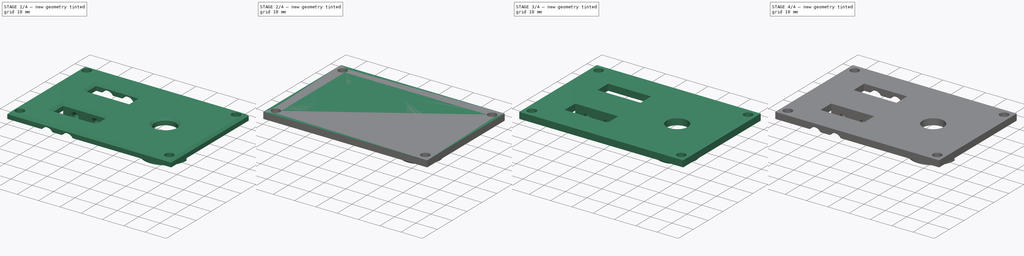
[diagram: build sequence overview — one tinted view per stage of 4, left to right]
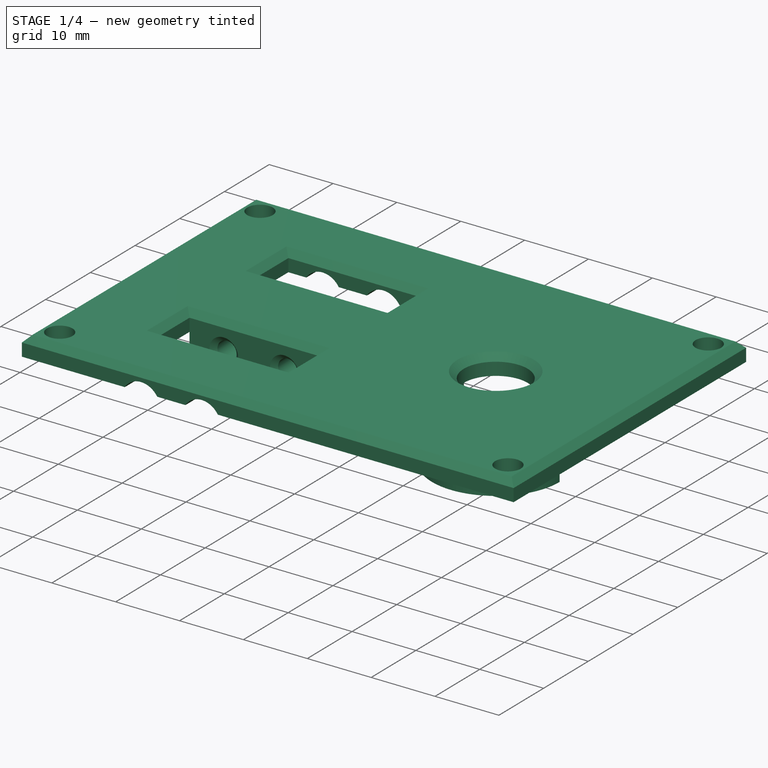
[diagram: stage 1 of 4 — iso view after this stage's code; geometry added in this stage tinted green]
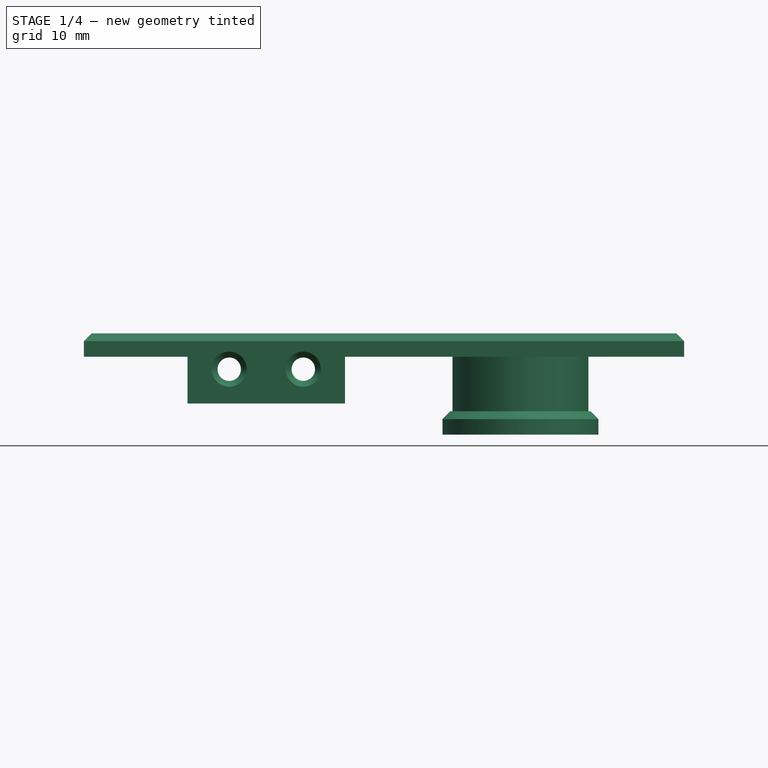
[diagram: stage 1 of 4 — front view after this stage's code; geometry added in this stage tinted green]
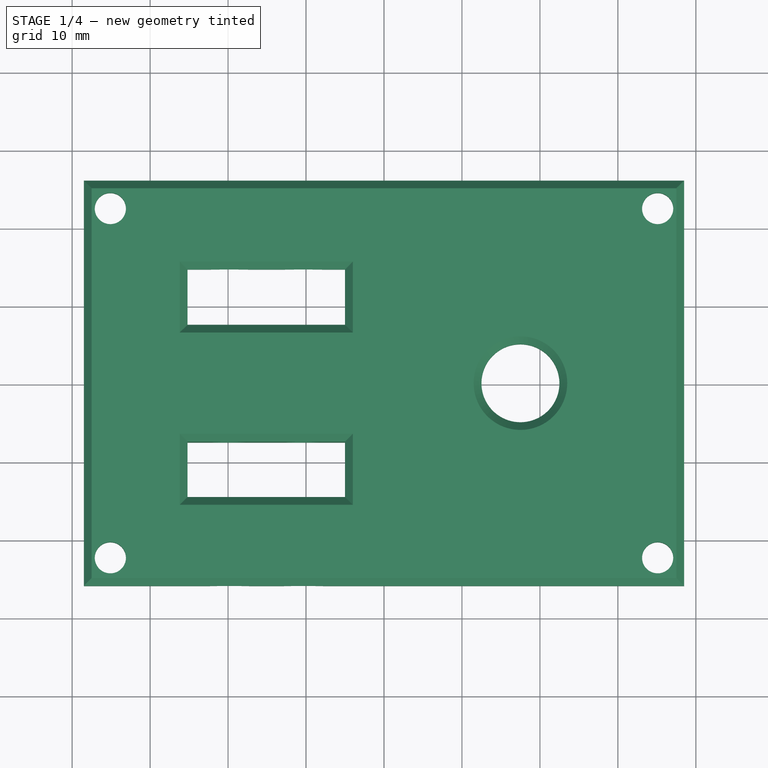
[diagram: stage 1 of 4 — top view after this stage's code; geometry added in this stage tinted green]
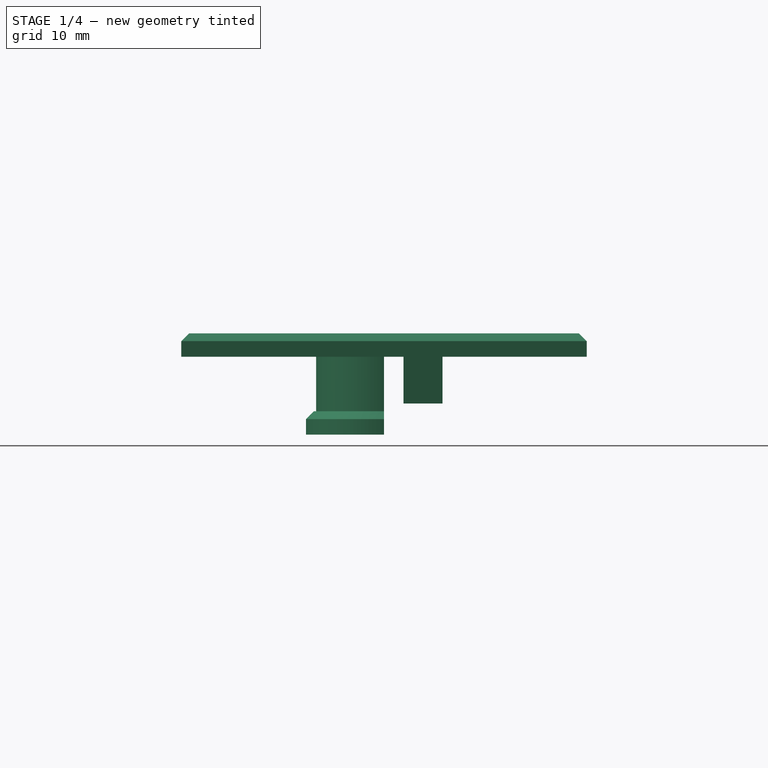
[diagram: stage 1 of 4 — right view after this stage's code; geometry added in this stage tinted green]
FCSTD DOCUMENT  (FreeCAD 0.17R7796 (Git))
Label: taz_heat_bed_external_extention_harness_plate
License: CreativeCommons Attribution-ShareAlike
LicenseURL: http://creativecommons.org/licenses/by-sa/4.0/
objects: Sketcher::SketchObject×8, PartDesign::Chamfer×6, PartDesign::Pad×4, PartDesign::Pocket×4, PartDesign::Body×1, Part::Feature×1
note: 32 computed .brp shape members not serialized (recipe doc carries the construction recipe); baked Part::Feature solids carry a one-line shape summary decoded from their .brp

FEATURE [PartDesign::Body] Body
  Model = -> [Sketch,Pad,Sketch001,Pocket,Sketch002,Pad001,Sketch003,Pocket001,Sketch004,Pocket002,Sketch005,Pocket003,Sketch006,Pad002,Sketch007,Pad003]
  Origin = -> BodyOrigin
  Tip = -> Pad003
FEATURE [Part::Feature] Pad003001  label="Pad004"
  shape: bbox 77 x 52 x 13 mm, 43 faces (baked)
FEATURE [PartDesign::Chamfer] Chamfer
  Base = -> Pad003001 [Edge114]
  Size = 1
FEATURE [PartDesign::Chamfer] Chamfer001
  Base = -> Chamfer [Edge49]
  Size = 1
FEATURE [PartDesign::Chamfer] Chamfer002
  Base = -> Chamfer001 [Edge56,Edge55,Edge57,Edge58,Edge70,Edge67,Edge68,Edge69,Edge65,Edge63,Edge62,Edge64,Edge19]
  Size = 1
FEATURE [PartDesign::Chamfer] Chamfer003
  Base = -> Chamfer002 [Edge149,Edge148,Edge152,Edge151]
  Size = 0.75
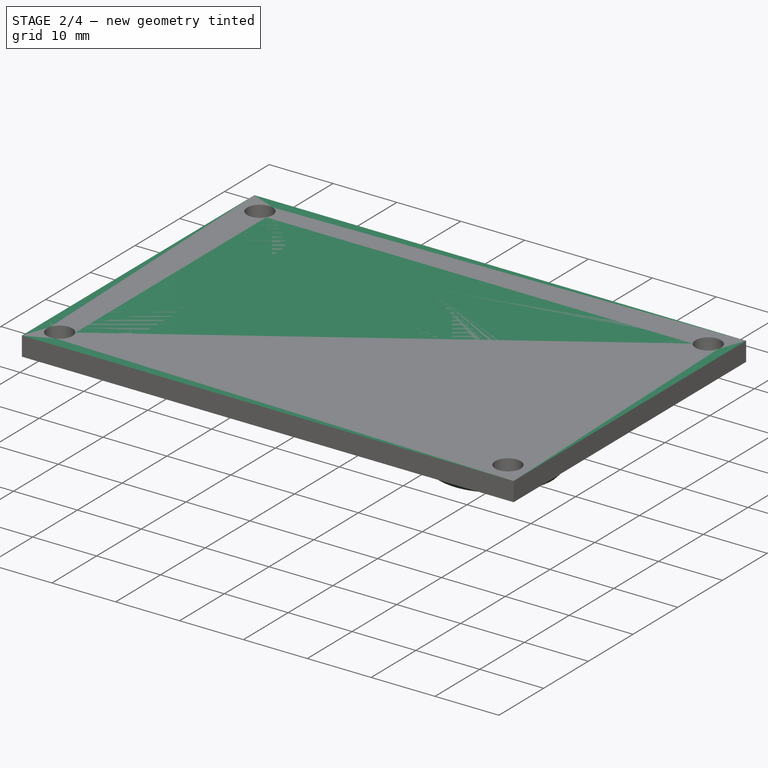
[diagram: stage 2 of 4 — iso view after this stage's code; geometry added in this stage tinted green]
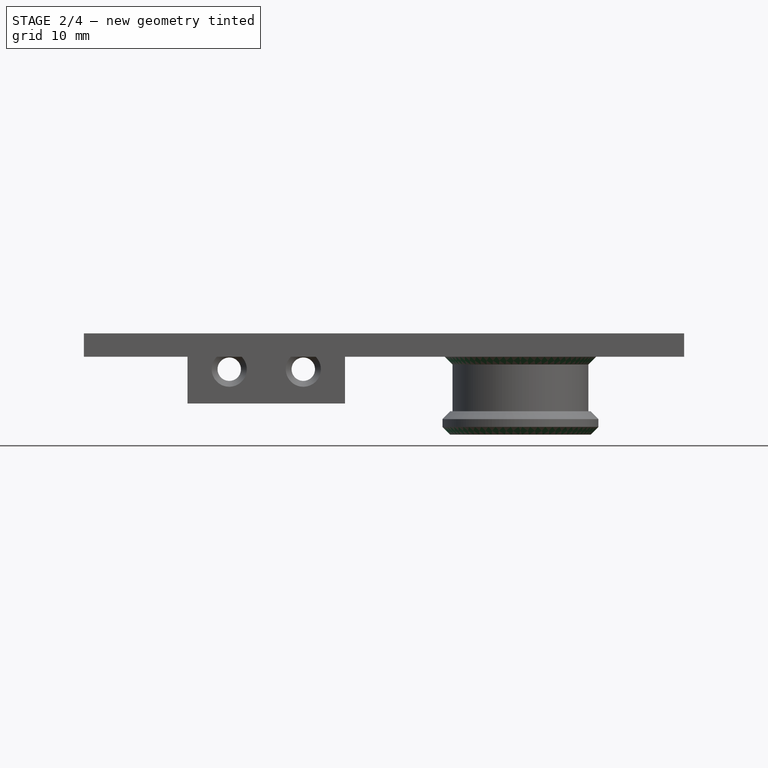
[diagram: stage 2 of 4 — front view after this stage's code; geometry added in this stage tinted green]
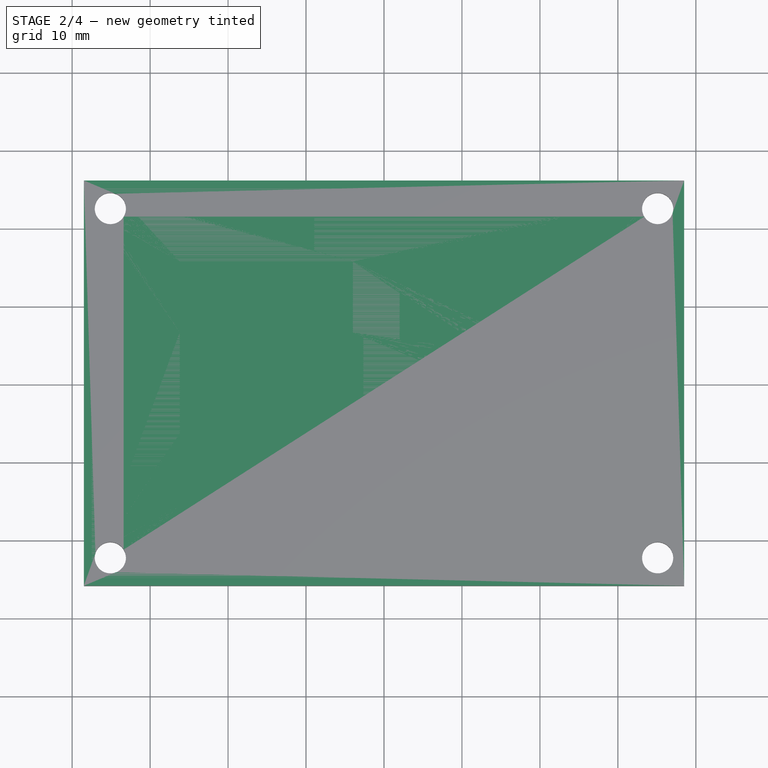
[diagram: stage 2 of 4 — top view after this stage's code; geometry added in this stage tinted green]
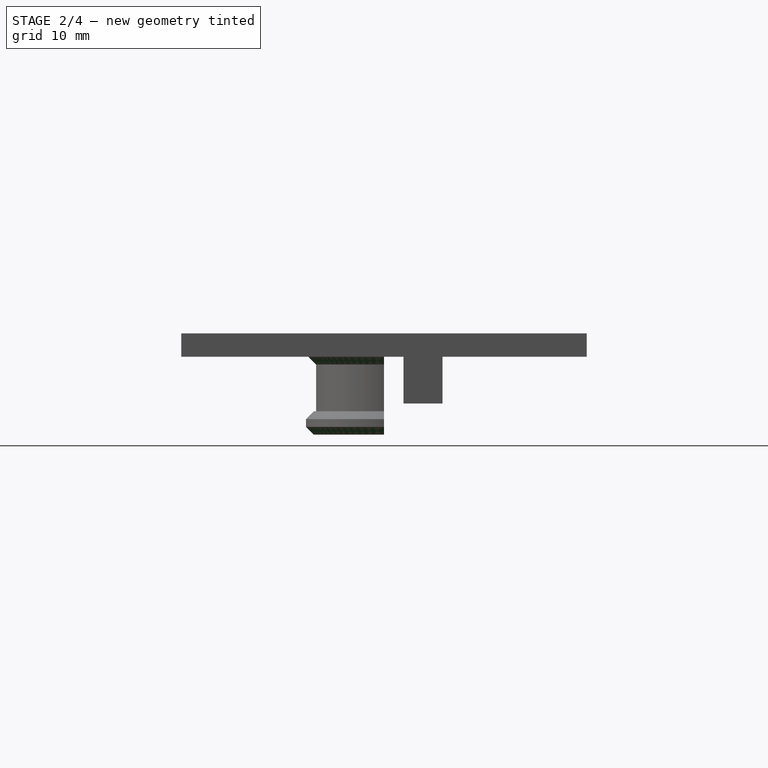
[diagram: stage 2 of 4 — right view after this stage's code; geometry added in this stage tinted green]
FEATURE [Sketcher::SketchObject] Sketch
  MapMode = 5
  Support = -> [XY_Plane]
  sketch-geometry (12):
    g0: LineSegment [constr] StartX=-35.1 StartY=22.4 StartZ=0 EndX=35.1 EndY=22.4 EndZ=0
    g1: LineSegment [constr] StartX=35.1 StartY=22.4 StartZ=0 EndX=35.1 EndY=-22.4 EndZ=0
    g2: LineSegment [constr] StartX=35.1 StartY=-22.4 StartZ=0 EndX=-35.1 EndY=-22.4 EndZ=0
    g3: LineSegment [constr] StartX=-35.1 StartY=-22.4 StartZ=0 EndX=-35.1 EndY=22.4 EndZ=0
    g4: LineSegment StartX=-38.5 StartY=26 StartZ=0 EndX=38.5 EndY=26 EndZ=0
    g5: LineSegment StartX=38.5 StartY=26 StartZ=0 EndX=38.5 EndY=-26 EndZ=0
    g6: LineSegment StartX=38.5 StartY=-26 StartZ=0 EndX=-38.5 EndY=-26 EndZ=0
    g7: LineSegment StartX=-38.5 StartY=-26 StartZ=0 EndX=-38.5 EndY=26 EndZ=0
    g8: Circle CenterX=-35.1 CenterY=22.4 CenterZ=0 NormalX=0 NormalY=0 NormalZ=1 Radius=2
    g9: Circle CenterX=35.1 CenterY=22.4 CenterZ=0 NormalX=0 NormalY=0 NormalZ=1 Radius=2
    g10: Circle CenterX=35.1 CenterY=-22.4 CenterZ=0 NormalX=0 NormalY=0 NormalZ=1 Radius=2
    g11: Circle CenterX=-35.1 CenterY=-22.4 CenterZ=0 NormalX=0 NormalY=0 NormalZ=1 Radius=2
  constraints (32):
    c: Coincident(g0,g1)
    c: Coincident(g1,g2)
    c: Coincident(g2,g3)
    c: Coincident(g3,g0)
    c: Horizontal(g0)
    c: Horizontal(g2)
    c: Vertical(g1)
    c: Vertical(g3)
    c: DistanceY(g3,g3) = 44.8
    c: DistanceX(g0,g0) = 70.2
    c: Coincident(g4,g5)
    c: Coincident(g5,g6)
    c: Coincident(g6,g7)
    c: Coincident(g7,g4)
    c: Horizontal(g4)
    c: Horizontal(g6)
    c: Vertical(g5)
    c: Vertical(g7)
    c: DistanceY(g7,g7) = 52
    c: DistanceX(g4,g4) = 77
    c: DistanceX(g2,g-1) = 35.1
    c: DistanceY(g2,g-1) = 22.4
    c: DistanceY(g0,g4) = 3.6
    c: DistanceX(g4,g0) = 3.4
    c: Coincident(g8,g0)
    c: Coincident(g9,g0)
    c: Coincident(g10,g1)
    c: Coincident(g11,g2)
    c: Radius(g11) = 2
    c: Equal(g11,g8)
    c: Equal(g11,g9)
    c: Equal(g11,g10)
FEATURE [PartDesign::Pad] Pad
  Length = 3
  Length2 = 100
  Profile = -> Sketch
  Type = 0
FEATURE [PartDesign::Chamfer] Chamfer004
  Base = -> Chamfer003 [Edge60]
  Size = 1
FEATURE [PartDesign::Chamfer] Chamfer005
  Base = -> Chamfer004 [Edge122]
  Size = 1
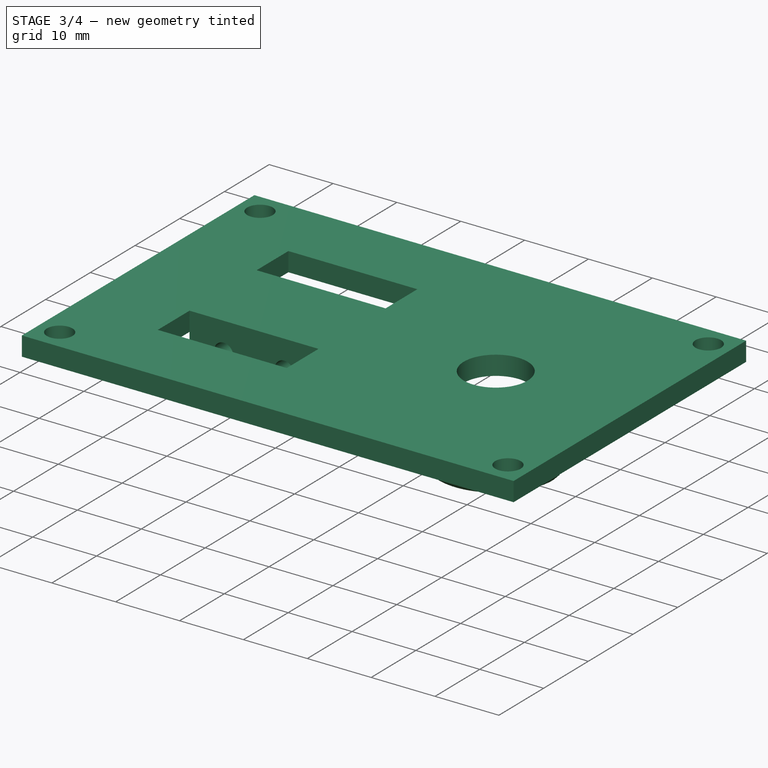
[diagram: stage 3 of 4 — iso view after this stage's code; geometry added in this stage tinted green]
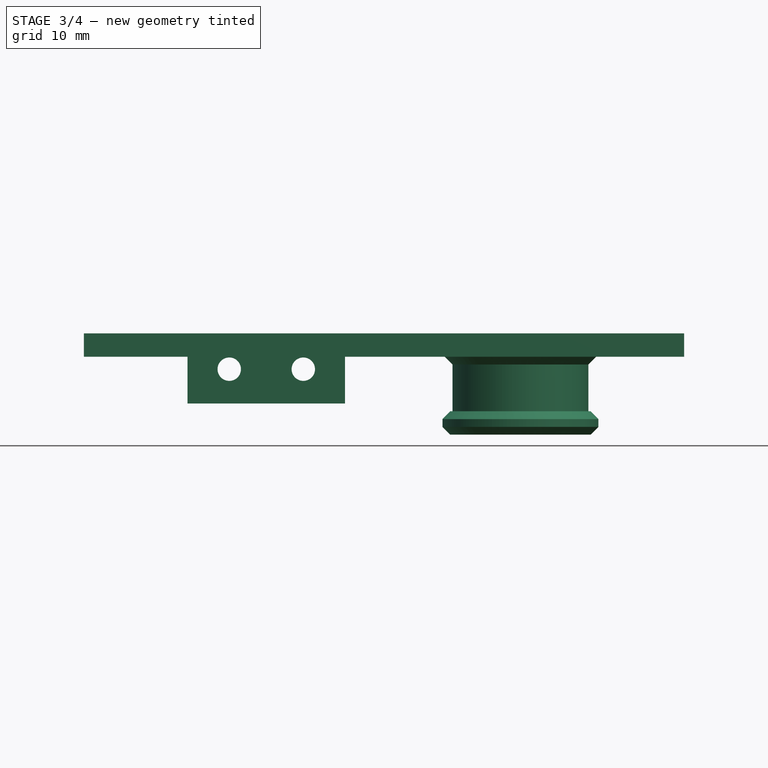
[diagram: stage 3 of 4 — front view after this stage's code; geometry added in this stage tinted green]
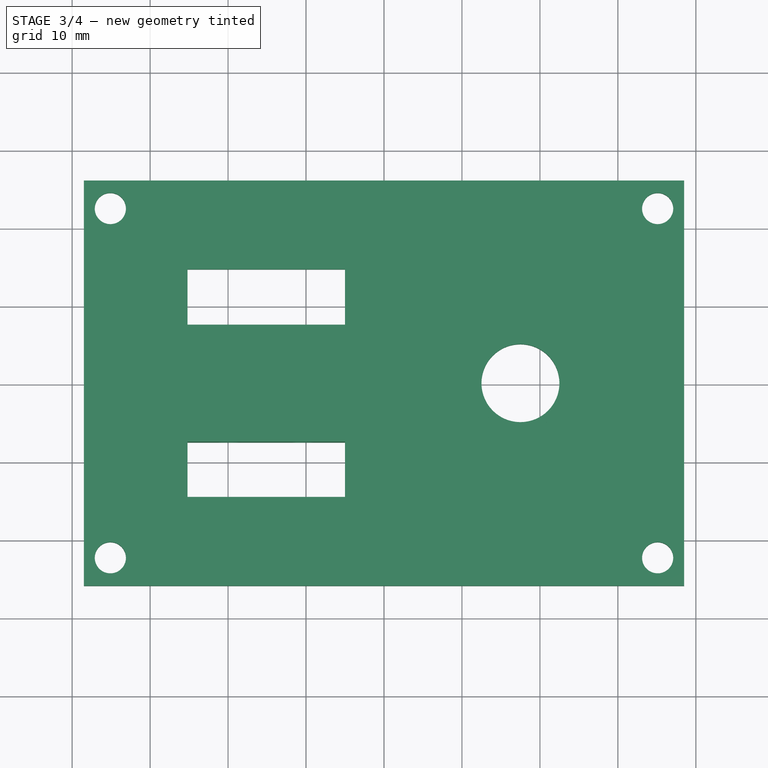
[diagram: stage 3 of 4 — top view after this stage's code; geometry added in this stage tinted green]
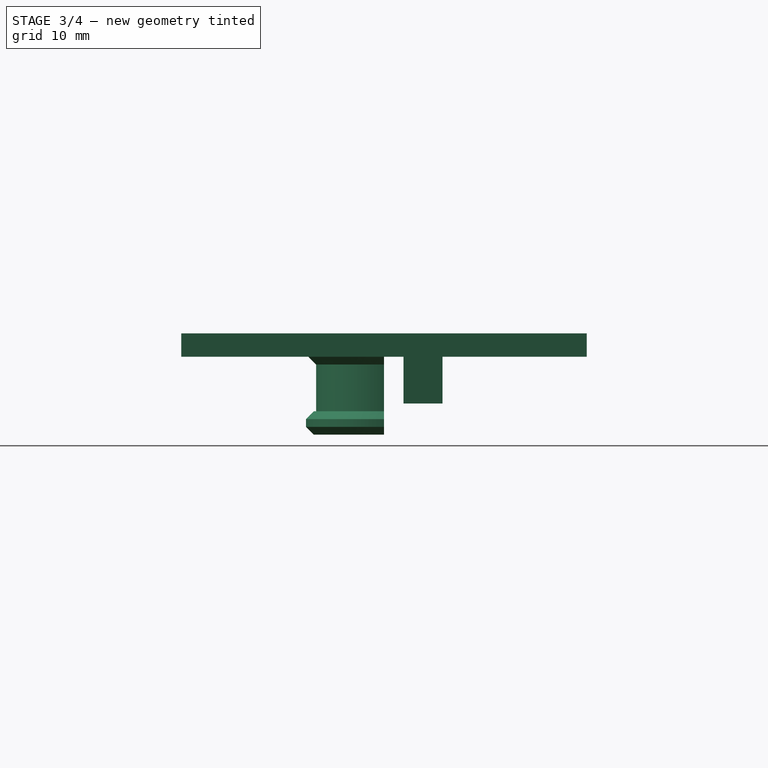
[diagram: stage 3 of 4 — right view after this stage's code; geometry added in this stage tinted green]
FEATURE [Sketcher::SketchObject] Sketch001
  MapMode = 5
  Placement = pos=(0,0,3) rot=(0,0,1;0rad)
  Support = -> [Pad]
  sketch-geometry (9):
    g0: LineSegment StartX=-25.2 StartY=14.6 StartZ=0 EndX=-5 EndY=14.6 EndZ=0
    g1: LineSegment StartX=-5 StartY=14.6 StartZ=0 EndX=-5 EndY=7.5 EndZ=0
    g2: LineSegment StartX=-5 StartY=7.5 StartZ=0 EndX=-25.2 EndY=7.5 EndZ=0
    g3: LineSegment StartX=-25.2 StartY=7.5 StartZ=0 EndX=-25.2 EndY=14.6 EndZ=0
    g4: LineSegment StartX=-25.2 StartY=-7.5 StartZ=0 EndX=-5 EndY=-7.5 EndZ=0
    g5: LineSegment StartX=-5 StartY=-7.5 StartZ=0 EndX=-5 EndY=-14.6 EndZ=0
    g6: LineSegment StartX=-5 StartY=-14.6 StartZ=0 EndX=-25.2 EndY=-14.6 EndZ=0
    g7: LineSegment StartX=-25.2 StartY=-14.6 StartZ=0 EndX=-25.2 EndY=-7.5 EndZ=0
    g8: Circle CenterX=17.5 CenterY=0 CenterZ=0 NormalX=0 NormalY=0 NormalZ=1 Radius=5
  constraints (27):
    c: Coincident(g0,g1)
    c: Coincident(g1,g2)
    c: Coincident(g2,g3)
    c: Coincident(g3,g0)
    c: Horizontal(g0)
    c: Horizontal(g2)
    c: Vertical(g1)
    c: Vertical(g3)
    c: Coincident(g4,g5)
    c: Coincident(g5,g6)
    c: Coincident(g6,g7)
    c: Coincident(g7,g4)
    c: Horizontal(g4)
    c: Horizontal(g6)
    c: Vertical(g5)
    c: Vertical(g7)
    c: PointOnObject(g8,g-1)
    c: Equal(g4,g2)
    c: Equal(g1,g5)
    c: DistanceY(g-1,g1) = 7.5
    c: DistanceY(g4,g-1) = 7.5
    c: DistanceX(g1,g4) = 0
    c: DistanceX(g1,g-1) = 5
    c: DistanceX(g-1,g8) = 17.5
    c: DistanceY(g3,g3) = 7.1
    c: DistanceX(g0,g0) = 20.2
    c: Radius(g8) = 5
FEATURE [PartDesign::Pocket] Pocket
  BaseFeature = -> Pad
  Length = 5
  Profile = -> Sketch001
  Type = 1
FEATURE [Sketcher::SketchObject] Sketch002
  ExternalGeometry = -> [Pocket]
  MapMode = 5
  Placement = pos=(0,0,0) rot=(1,0,0;3.14159rad)
  Support = -> [Pocket]
  sketch-geometry (8):
    g0: LineSegment StartX=-25.2 StartY=7.5 StartZ=0 EndX=-5 EndY=7.5 EndZ=0
    g1: LineSegment StartX=-5 StartY=7.5 StartZ=0 EndX=-5 EndY=2.5 EndZ=0
    g2: LineSegment StartX=-5 StartY=2.5 StartZ=0 EndX=-25.2 EndY=2.5 EndZ=0
    g3: LineSegment StartX=-25.2 StartY=2.5 StartZ=0 EndX=-25.2 EndY=7.5 EndZ=0
    g4: LineSegment StartX=-25.2 StartY=-7.5 StartZ=0 EndX=-5 EndY=-7.5 EndZ=0
    g5: LineSegment StartX=-5 StartY=-7.5 StartZ=0 EndX=-5 EndY=-2.5 EndZ=0
    g6: LineSegment StartX=-5 StartY=-2.5 StartZ=0 EndX=-25.2 EndY=-2.5 EndZ=0
    g7: LineSegment StartX=-25.2 StartY=-2.5 StartZ=0 EndX=-25.2 EndY=-7.5 EndZ=0
  constraints (22):
    c: Coincident(g0,g1)
    c: Coincident(g1,g2)
    c: Coincident(g2,g3)
    c: Coincident(g3,g0)
    c: Horizontal(g0)
    c: Horizontal(g2)
    c: Vertical(g1)
    c: Vertical(g3)
    c: Coincident(g0,g-3)
    c: Coincident(g4,g5)
    c: Coincident(g5,g6)
    c: Coincident(g6,g7)
    c: Coincident(g7,g4)
    c: Horizontal(g4)
    c: Horizontal(g6)
    c: Vertical(g5)
    c: Vertical(g7)
    c: Coincident(g4,g-4)
    c: Coincident(g4,g-4)
    c: Coincident(g0,g-3)
    c: Equal(g1,g5)
    c: DistanceY(g3,g3) = 5
FEATURE [PartDesign::Pad] Pad001
  BaseFeature = -> Pocket
  Length = 6
  Length2 = 100
  Profile = -> Sketch002
  Type = 0
FEATURE [Sketcher::SketchObject] Sketch003
  ExternalGeometry = -> [Pad001]
  MapMode = 5
  Placement = pos=(0,7.5,0) rot=(0,0.707107,0.707107;3.14159rad)
  Support = -> [Pad001]
  sketch-geometry (5):
    g0: Circle CenterX=10.35 CenterY=-1.6 CenterZ=0 NormalX=0 NormalY=0 NormalZ=1 Radius=1.5
    g1: Circle CenterX=19.85 CenterY=-1.6 CenterZ=0 NormalX=0 NormalY=0 NormalZ=1 Radius=1.5
    g2: LineSegment [constr] StartX=10.35 StartY=0 StartZ=0 EndX=10.35 EndY=-1.6 EndZ=0
    g3: LineSegment [constr] StartX=10.35 StartY=-1.6 StartZ=0 EndX=5 EndY=-1.6 EndZ=0
    g4: LineSegment [constr] StartX=19.85 StartY=-1.6 StartZ=0 EndX=25.2 EndY=-1.6 EndZ=0
  constraints (15):
    c: DistanceY(g0,g1) = 0
    c: Radius(g1) = 1.5
    c: Equal(g1,g0)
    c: PointOnObject(g2,g-3)
    c: Vertical(g2)
    c: Coincident(g0,g2)
    c: DistanceY(g2,g2) = 1.6
    c: DistanceX(g0,g1) = 9.5
    c: Horizontal(g3)
    c: Horizontal(g4)
    c: Coincident(g1,g4)
    c: PointOnObject(g4,g-5)
    c: Coincident(g0,g3)
    c: PointOnObject(g3,g-4)
    c: Equal(g3,g4)
FEATURE [PartDesign::Pocket] Pocket001
  BaseFeature = -> Pad001
  Length = 5
  Profile = -> Sketch003
  Type = 1
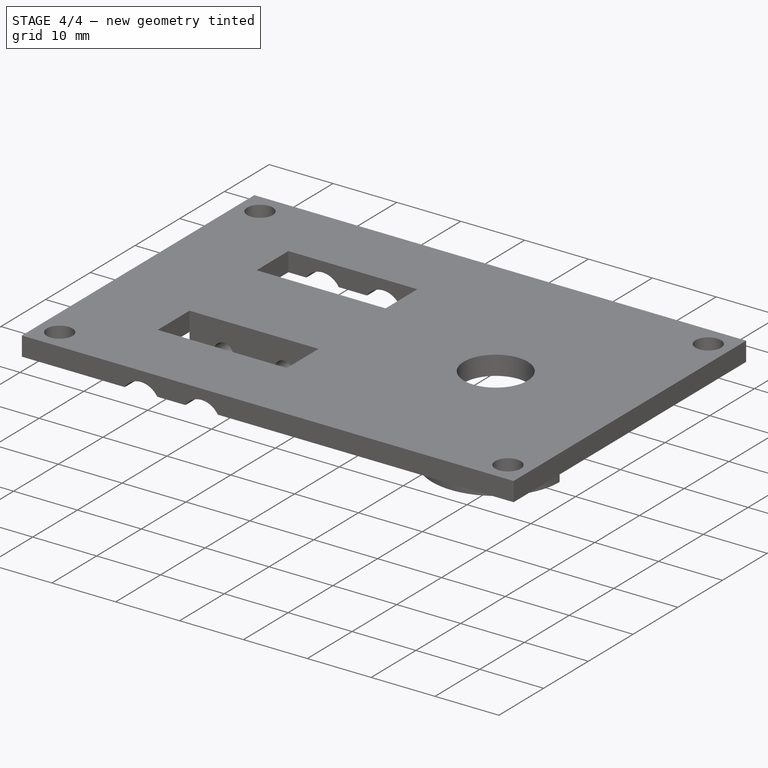
[diagram: stage 4 of 4 — iso view after this stage's code; geometry added in this stage tinted green]
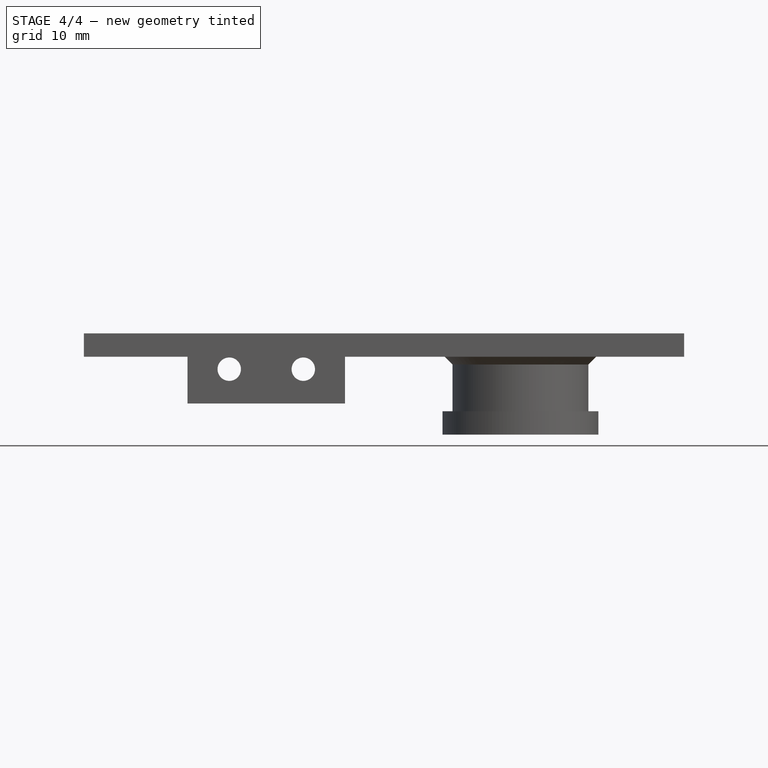
[diagram: stage 4 of 4 — front view after this stage's code; geometry added in this stage tinted green]
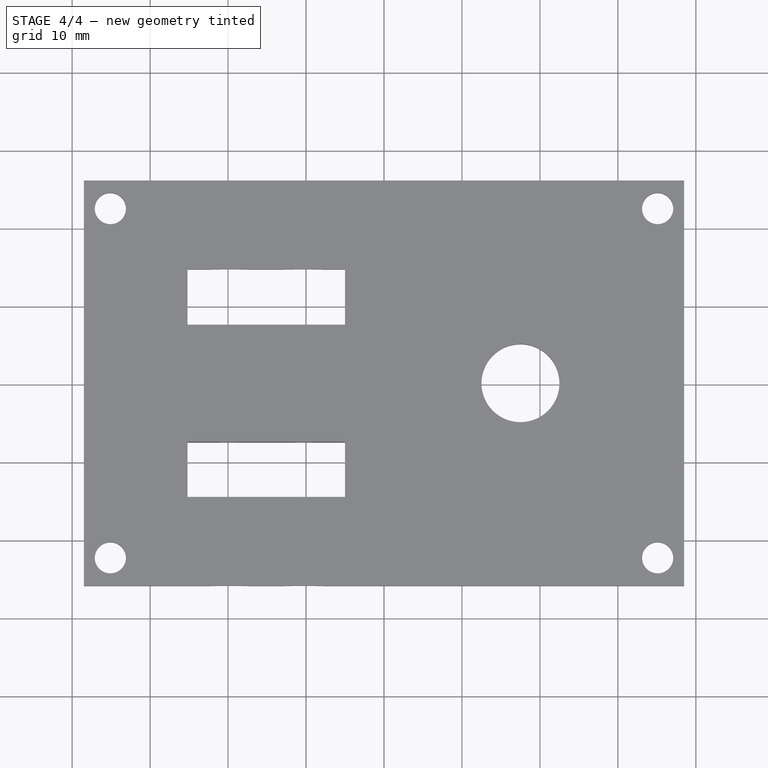
[diagram: stage 4 of 4 — top view after this stage's code; geometry added in this stage tinted green]
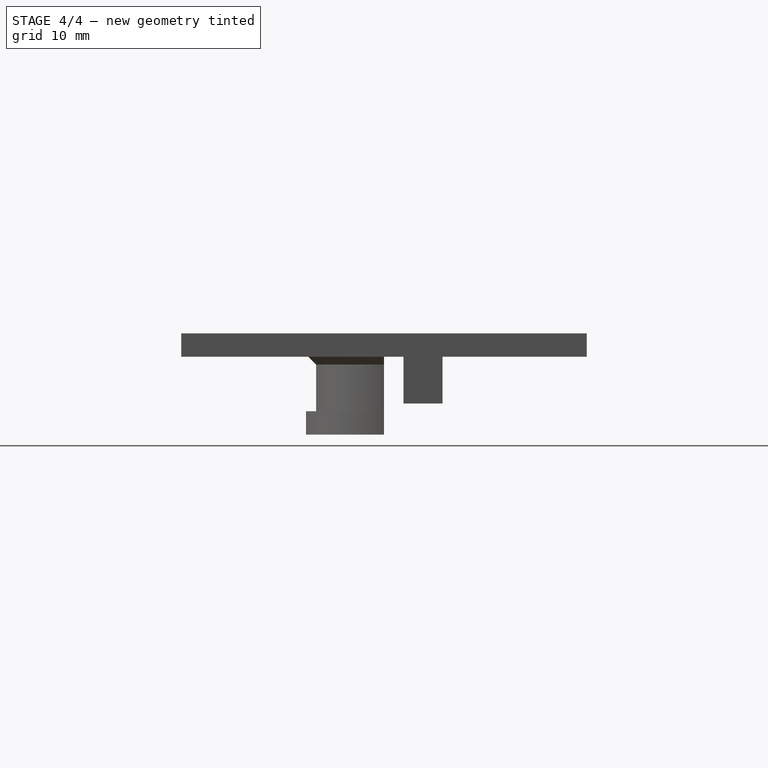
[diagram: stage 4 of 4 — right view after this stage's code; geometry added in this stage tinted green]
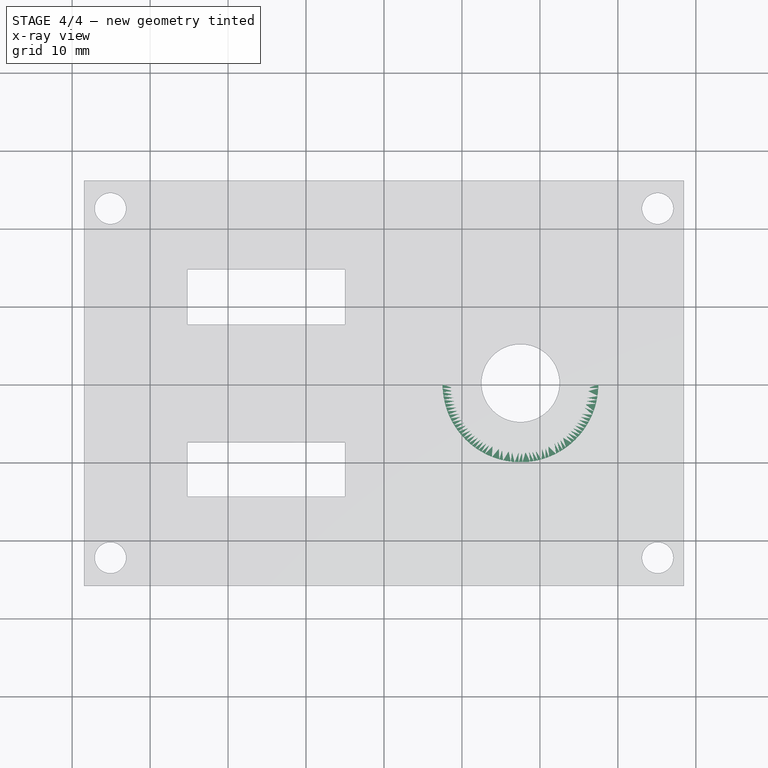
[diagram: stage 4 of 4 — x-ray composite at the top view; earlier geometry ghosted, this stage's added geometry solid]
FEATURE [Sketcher::SketchObject] Sketch004
  ExternalGeometry = -> [Pocket001]
  MapMode = 5
  Placement = pos=(0,7.5,0) rot=(0,0.707107,0.707107;3.14159rad)
  Support = -> [Pocket001]
  sketch-geometry (2):
    g0: Circle CenterX=10.35 CenterY=-1.6 CenterZ=0 NormalX=0 NormalY=0 NormalZ=1 Radius=3
    g1: Circle CenterX=19.85 CenterY=-1.6 CenterZ=0 NormalX=0 NormalY=0 NormalZ=1 Radius=3
  constraints (4):
    c: Coincident(g0,g-3)
    c: Coincident(g1,g-4)
    c: Radius(g0) = 3
    c: Equal(g0,g1)
FEATURE [PartDesign::Pocket] Pocket002
  BaseFeature = -> Pocket001
  Length = 5
  Profile = -> Sketch004
  Reversed = true
  Type = 1
FEATURE [Sketcher::SketchObject] Sketch005
  ExternalGeometry = -> [Pocket002]
  MapMode = 5
  Placement = pos=(0,-7.5,0) rot=(1,0,0;1.5708rad)
  Support = -> [Pocket002]
  sketch-geometry (2):
    g0: Circle CenterX=-19.85 CenterY=-1.6 CenterZ=0 NormalX=0 NormalY=0 NormalZ=1 Radius=3
    g1: Circle CenterX=-10.35 CenterY=-1.6 CenterZ=0 NormalX=0 NormalY=0 NormalZ=1 Radius=3
  constraints (4):
    c: Coincident(g1,g-4)
    c: Coincident(g0,g-3)
    c: Radius(g0) = 3
    c: Equal(g0,g1)
FEATURE [PartDesign::Pocket] Pocket003
  BaseFeature = -> Pocket002
  Length = 5
  Profile = -> Sketch005
  Reversed = true
  Type = 1
FEATURE [Sketcher::SketchObject] Sketch006
  ExternalGeometry = -> [Pocket003]
  MapMode = 5
  Placement = pos=(0,0,0) rot=(1,0,0;3.14159rad)
  Support = -> [Pocket003]
  sketch-geometry (4):
    g0: ArcOfCircle CenterX=17.5 CenterY=0 CenterZ=0 NormalX=0 NormalY=0 NormalZ=1 Radius=5 StartAngle=0 EndAngle=3.14159
    g1: ArcOfCircle CenterX=17.5 CenterY=0 CenterZ=0 NormalX=0 NormalY=0 NormalZ=1 Radius=8.70759 StartAngle=0 EndAngle=3.14159
    g2: LineSegment StartX=8.79241 StartY=0 StartZ=0 EndX=12.5 EndY=0 EndZ=0
    g3: LineSegment StartX=22.5 StartY=0 StartZ=0 EndX=26.2076 EndY=0 EndZ=0
  constraints (11):
    c: Coincident(g0,g-3)
    c: PointOnObject(g0,g-1)
    c: PointOnObject(g0,g-1)
    c: PointOnObject(g0,g-3)
    c: Coincident(g0,g1)
    c: PointOnObject(g1,g-1)
    c: PointOnObject(g1,g-1)
    c: Coincident(g1,g3)
    c: Coincident(g0,g3)
    c: Coincident(g0,g2)
    c: Coincident(g1,g2)
FEATURE [PartDesign::Pad] Pad002
  BaseFeature = -> Pocket003
  Length = 10
  Length2 = 100
  Profile = -> Sketch006
  Type = 0
FEATURE [Sketcher::SketchObject] Sketch007
  ExternalGeometry = -> [Pad002]
  MapMode = 5
  Placement = pos=(0,0,-10) rot=(1,0,0;3.14159rad)
  Support = -> [Pad002]
  sketch-geometry (4):
    g0: ArcOfCircle CenterX=17.5 CenterY=0 CenterZ=0 NormalX=0 NormalY=0 NormalZ=1 Radius=10 StartAngle=0 EndAngle=3.14159
    g1: ArcOfCircle CenterX=17.5 CenterY=0 CenterZ=0 NormalX=0 NormalY=0 NormalZ=1 Radius=5 StartAngle=0 EndAngle=3.14159
    g2: LineSegment StartX=7.5 StartY=0 StartZ=0 EndX=12.5 EndY=0 EndZ=0
    g3: LineSegment StartX=22.5 StartY=0 StartZ=0 EndX=27.5 EndY=0 EndZ=0
  constraints (11):
    c: Horizontal(g3)
    c: Coincident(g0,g3)
    c: Coincident(g1,g3)
    c: Coincident(g1,g-3)
    c: Coincident(g1,g2)
    c: Coincident(g1,g-3)
    c: Coincident(g0,g2)
    c: Coincident(g0,g1)
    c: Coincident(g0,g-3)
    c: Radius(g0) = 10
    c: Horizontal(g2)
FEATURE [PartDesign::Pad] Pad003
  BaseFeature = -> Pad002
  Length = 3
  Length2 = 100
  Profile = -> Sketch007
  Reversed = true
  Type = 0
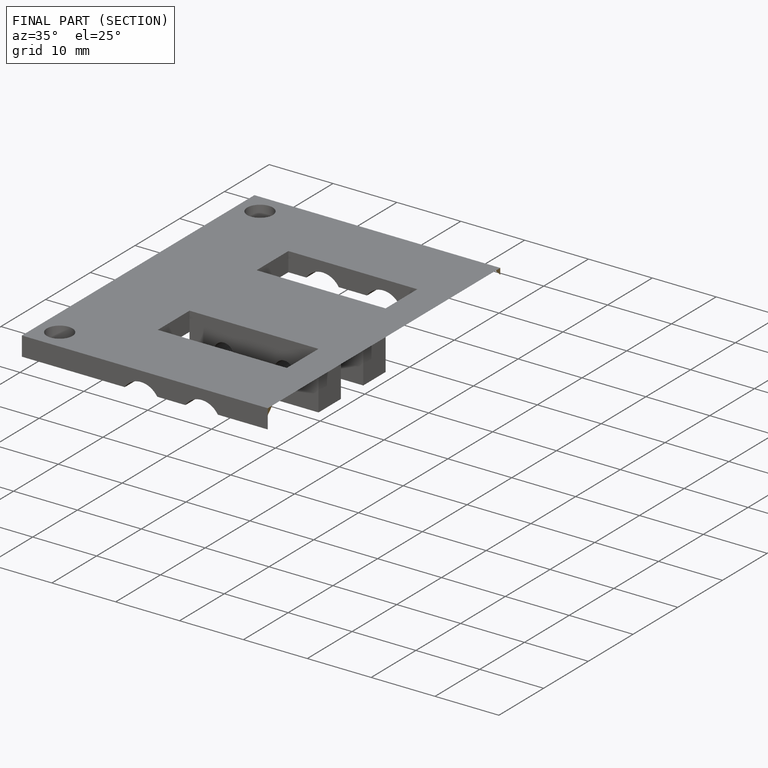
[diagram: finished part — half-section view (interior)]
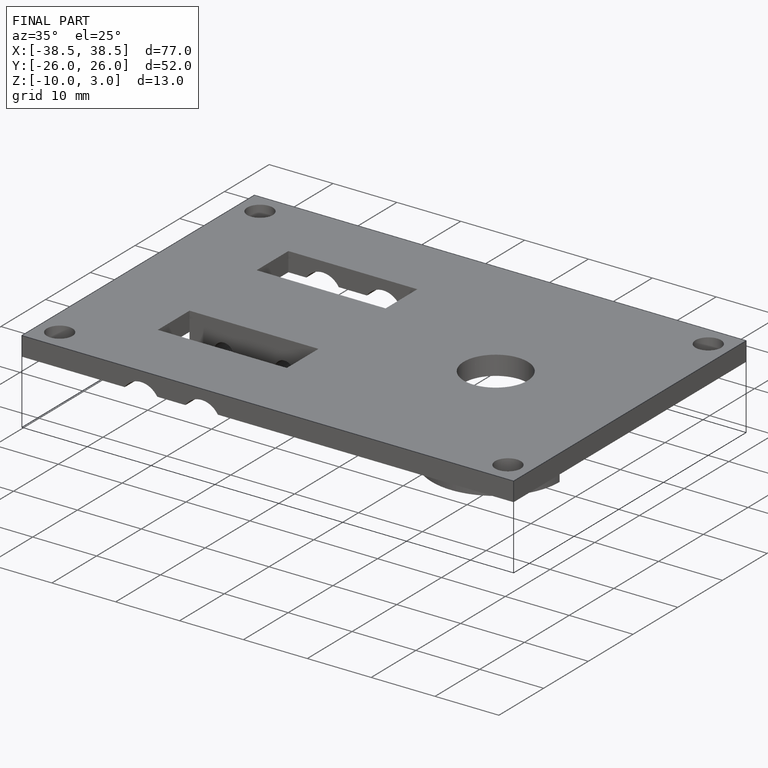
[diagram: finished part — iso view with bounding-box wireframe]
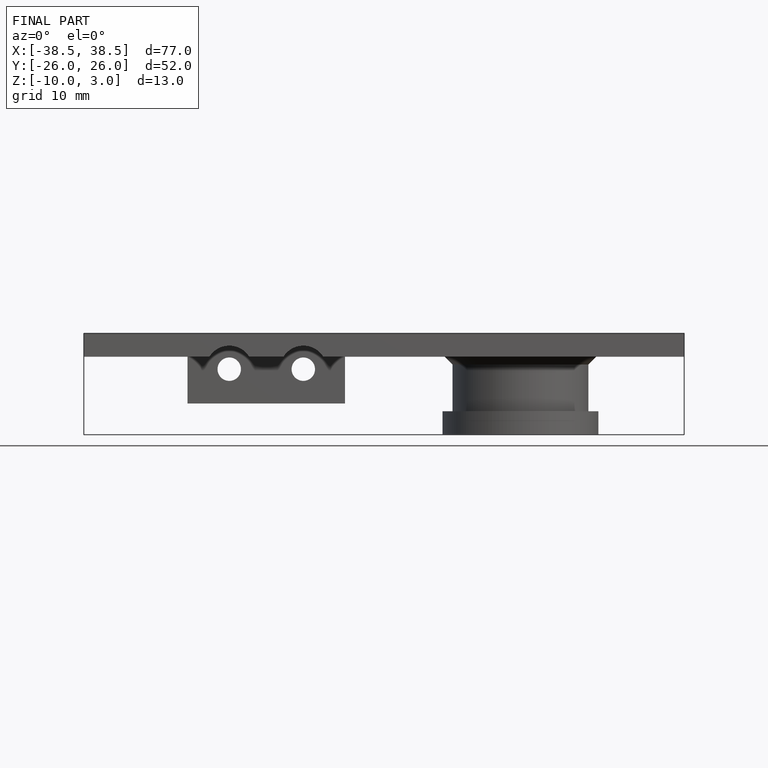
[diagram: finished part — front view with bounding-box wireframe]
